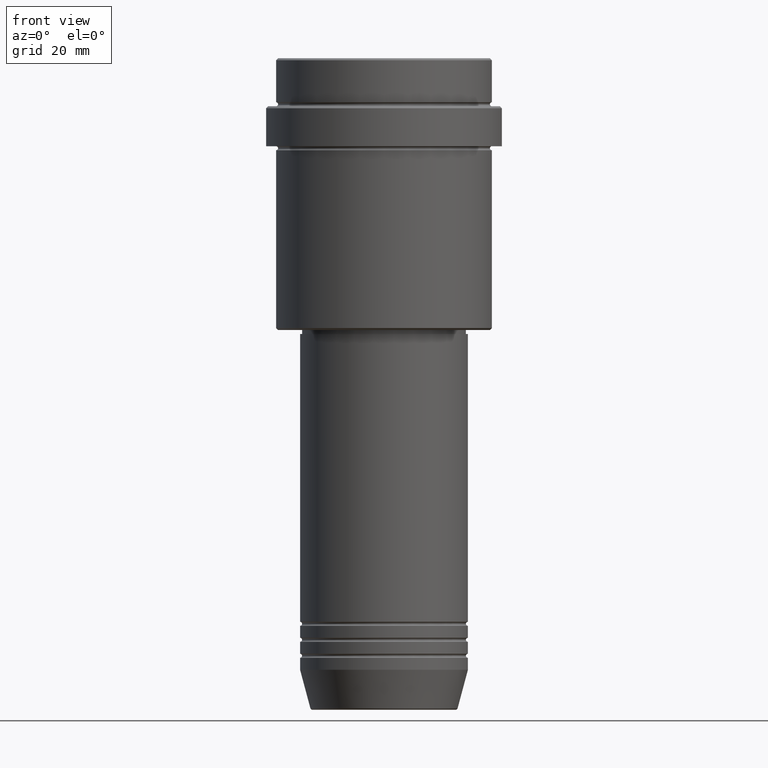
[diagram: clean part render]
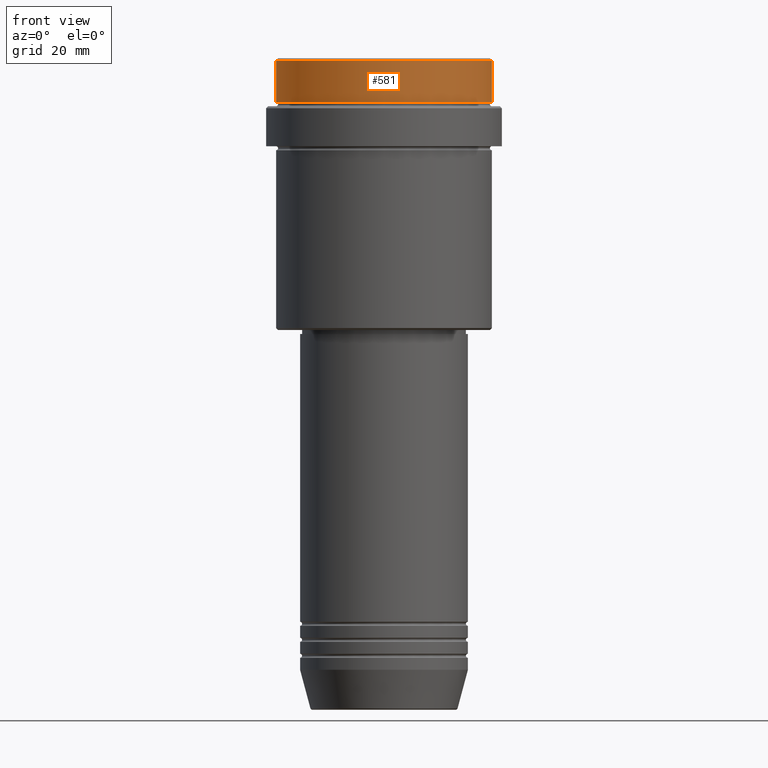
[diagram: same view with one face highlighted and labeled with its STEP entity id]
A machine part, front view. The second image highlights one B-rep face of the part: STEP entity #581.
In plain terms, the highlighted cylindrical surface (partial cylindrical patch) has radius 27 mm, axis along (-0, -0, 1).
Its self-contained STEP definition (entity closure, byte-faithful):
#8 = AXIS2_PLACEMENT_3D ( 'NONE', #1154, #297, #928 ) ;
#61 = CARTESIAN_POINT ( 'NONE',  ( 27.00000000000000355, 0.000000000000000000, 0.000000000000000000 ) ) ;
#67 = CIRCLE ( 'NONE', #1261, 27.00000000000000355 ) ;
#80 = VERTEX_POINT ( 'NONE', #1232 ) ;
#113 = EDGE_CURVE ( 'NONE', #758, #253, #67, .T. ) ;
#137 = EDGE_CURVE ( 'NONE', #80, #253, #258, .T. ) ;
#178 = CARTESIAN_POINT ( 'NONE',  ( 27.00000000000000355, 0.000000000000000000, -0.5000000000000073275 ) ) ;
#242 = FACE_OUTER_BOUND ( 'NONE', #835, .T. ) ;
#253 = VERTEX_POINT ( 'NONE', #923 ) ;
#258 = LINE ( 'NONE', #681, #1062 ) ;
#297 = DIRECTION ( 'NONE',  ( -0.000000000000000000, -0.000000000000000000, 1.000000000000000000 ) ) ;
#350 = CIRCLE ( 'NONE', #8, 27.00000000000000355 ) ;
#436 = VERTEX_POINT ( 'NONE', #1171 ) ;
#464 = DIRECTION ( 'NONE',  ( -0.000000000000000000, -0.000000000000000000, 1.000000000000000000 ) ) ;
#481 = VECTOR ( 'NONE', #1270, 1000.000000000000000 ) ;
#581 = ADVANCED_FACE ( 'NONE', ( #242 ), #668, .T. ) ;
#668 = CYLINDRICAL_SURFACE ( 'NONE', #948, 27.00000000000000355 ) ;
#681 = CARTESIAN_POINT ( 'NONE',  ( -27.00000000000000355, 3.306546357697854128E-15, 0.000000000000000000 ) ) ;
#758 = VERTEX_POINT ( 'NONE', #178 ) ;
#835 = EDGE_LOOP ( 'NONE', ( #966, #1143, #1052, #1203 ) ) ;
#873 = CARTESIAN_POINT ( 'NONE',  ( 0.000000000000000000, 0.000000000000000000, -0.5000000000000073275 ) ) ;
#892 = DIRECTION ( 'NONE',  ( 1.000000000000000000, 0.000000000000000000, 0.000000000000000000 ) ) ;
#923 = CARTESIAN_POINT ( 'NONE',  ( -27.00000000000000355, 3.306546357697854128E-15, -0.5000000000000073275 ) ) ;
#928 = DIRECTION ( 'NONE',  ( 1.000000000000000000, 0.000000000000000000, 0.000000000000000000 ) ) ;
#948 = AXIS2_PLACEMENT_3D ( 'NONE', #1224, #464, #892 ) ;
#966 = ORIENTED_EDGE ( 'NONE', *, *, #137, .F. ) ;
#1051 = EDGE_CURVE ( 'NONE', #436, #758, #1137, .T. ) ;
#1052 = ORIENTED_EDGE ( 'NONE', *, *, #1051, .T. ) ;
#1062 = VECTOR ( 'NONE', #1241, 1000.000000000000000 ) ;
#1103 = DIRECTION ( 'NONE',  ( 0.000000000000000000, 0.000000000000000000, -1.000000000000000000 ) ) ;
#1124 = DIRECTION ( 'NONE',  ( 1.000000000000000000, 0.000000000000000000, 0.000000000000000000 ) ) ;
#1137 = LINE ( 'NONE', #61, #481 ) ;
#1143 = ORIENTED_EDGE ( 'NONE', *, *, #1233, .T. ) ;
#1154 = CARTESIAN_POINT ( 'NONE',  ( 0.000000000000000000, 0.000000000000000000, -10.99999999999998757 ) ) ;
#1171 = CARTESIAN_POINT ( 'NONE',  ( 27.00000000000000355, 0.000000000000000000, -10.99999999999998757 ) ) ;
#1203 = ORIENTED_EDGE ( 'NONE', *, *, #113, .T. ) ;
#1224 = CARTESIAN_POINT ( 'NONE',  ( 0.000000000000000000, 0.000000000000000000, 0.000000000000000000 ) ) ;
#1232 = CARTESIAN_POINT ( 'NONE',  ( -27.00000000000000355, 3.306546357697854128E-15, -10.99999999999998757 ) ) ;
#1233 = EDGE_CURVE ( 'NONE', #80, #436, #350, .T. ) ;
#1241 = DIRECTION ( 'NONE',  ( -0.000000000000000000, -0.000000000000000000, 1.000000000000000000 ) ) ;
#1261 = AXIS2_PLACEMENT_3D ( 'NONE', #873, #1103, #1124 ) ;
#1270 = DIRECTION ( 'NONE',  ( -0.000000000000000000, -0.000000000000000000, 1.000000000000000000 ) ) ;